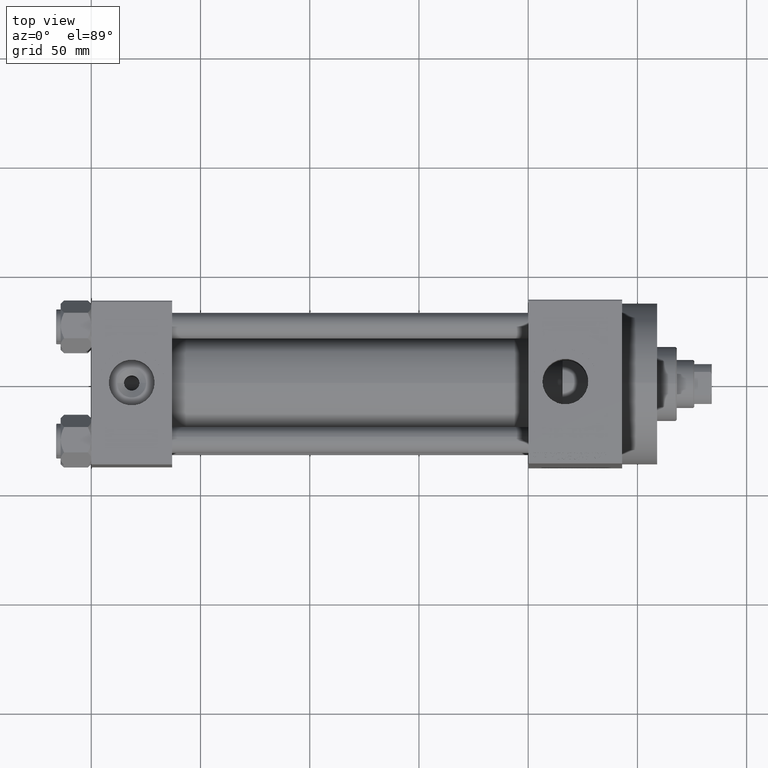
[diagram: clean part render]
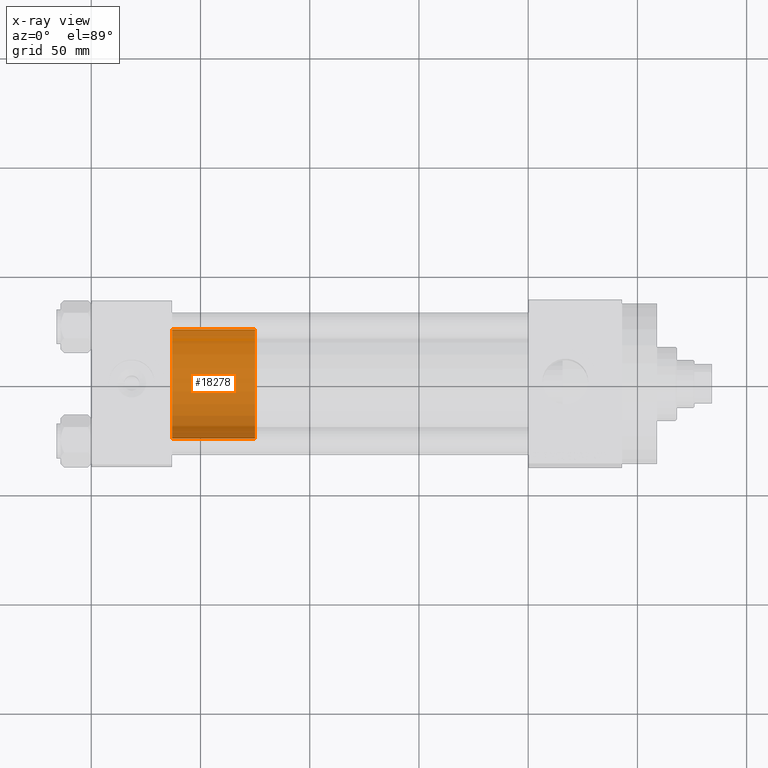
[diagram: x-ray — body ghosted, one internal face saturated and labeled with its STEP entity id]
A machine part, top view, then the same camera in x-ray: the body is ghosted and one INTERNAL B-rep face — a face not visible from any outside direction — is saturated and labeled: STEP entity #18278.
In plain terms, the highlighted cylindrical surface (partial cylindrical patch) has radius 25 mm, axis along (-1, 0, 0).
Its self-contained STEP definition (entity closure, byte-faithful):
#5282 = CYLINDRICAL_SURFACE ( 'NONE', #6899, 25.00000000000000000 ) ;
#5521 = CARTESIAN_POINT ( 'NONE',  ( 0.000000000000000000, 0.000000000000000000, 38.00000000000000000 ) ) ;
#5799 = ORIENTED_EDGE ( 'NONE', *, *, #43956, .F. ) ;
#6899 = AXIS2_PLACEMENT_3D ( 'NONE', #5521, #30124, #20092 ) ;
#6991 = VECTOR ( 'NONE', #15024, 1000.000000000000000 ) ;
#8460 = DIRECTION ( 'NONE',  ( 0.000000000000000000, 0.000000000000000000, 1.000000000000000000 ) ) ;
#9385 = EDGE_LOOP ( 'NONE', ( #5799, #38734, #14130, #19459 ) ) ;
#11811 = CARTESIAN_POINT ( 'NONE',  ( 0.000000000000000000, 0.000000000000000000, 0.000000000000000000 ) ) ;
#12518 = CARTESIAN_POINT ( 'NONE',  ( -25.00000000000000000, 0.000000000000000000, 38.00000000000000000 ) ) ;
#12570 = VERTEX_POINT ( 'NONE', #36905 ) ;
#14130 = ORIENTED_EDGE ( 'NONE', *, *, #43632, .T. ) ;
#14147 = VECTOR ( 'NONE', #44775, 1000.000000000000000 ) ;
#15024 = DIRECTION ( 'NONE',  ( -0.000000000000000000, -0.000000000000000000, -1.000000000000000000 ) ) ;
#15622 = CARTESIAN_POINT ( 'NONE',  ( -25.00000000000000000, 0.000000000000000000, 0.000000000000000000 ) ) ;
#16529 = CARTESIAN_POINT ( 'NONE',  ( 0.000000000000000000, 0.000000000000000000, 38.00000000000000000 ) ) ;
#18278 = ADVANCED_FACE ( 'NONE', ( #27011 ), #5282, .T. ) ;
#19456 = DIRECTION ( 'NONE',  ( 1.000000000000000000, 0.000000000000000000, 0.000000000000000000 ) ) ;
#19459 = ORIENTED_EDGE ( 'NONE', *, *, #37569, .F. ) ;
#20092 = DIRECTION ( 'NONE',  ( -1.000000000000000000, 0.000000000000000000, 0.000000000000000000 ) ) ;
#23518 = AXIS2_PLACEMENT_3D ( 'NONE', #11811, #8460, #19456 ) ;
#26238 = EDGE_CURVE ( 'NONE', #41365, #12570, #28867, .T. ) ;
#27011 = FACE_OUTER_BOUND ( 'NONE', #9385, .T. ) ;
#28867 = LINE ( 'NONE', #36036, #6991 ) ;
#30124 = DIRECTION ( 'NONE',  ( -0.000000000000000000, -0.000000000000000000, -1.000000000000000000 ) ) ;
#30194 = LINE ( 'NONE', #12518, #14147 ) ;
#30826 = CARTESIAN_POINT ( 'NONE',  ( -25.00000000000000000, 0.000000000000000000, 38.00000000000000000 ) ) ;
#34433 = DIRECTION ( 'NONE',  ( 1.000000000000000000, 0.000000000000000000, 0.000000000000000000 ) ) ;
#34661 = DIRECTION ( 'NONE',  ( 0.000000000000000000, 0.000000000000000000, 1.000000000000000000 ) ) ;
#35003 = AXIS2_PLACEMENT_3D ( 'NONE', #16529, #34661, #34433 ) ;
#36036 = CARTESIAN_POINT ( 'NONE',  ( 25.00000000000000000, 3.061616997868383043E-15, 38.00000000000000000 ) ) ;
#36905 = CARTESIAN_POINT ( 'NONE',  ( 25.00000000000000000, 3.061616997868383043E-15, 0.000000000000000000 ) ) ;
#37294 = CIRCLE ( 'NONE', #35003, 25.00000000000000000 ) ;
#37569 = EDGE_CURVE ( 'NONE', #41215, #43045, #30194, .T. ) ;
#38015 = CIRCLE ( 'NONE', #23518, 25.00000000000000000 ) ;
#38734 = ORIENTED_EDGE ( 'NONE', *, *, #26238, .T. ) ;
#41215 = VERTEX_POINT ( 'NONE', #30826 ) ;
#41365 = VERTEX_POINT ( 'NONE', #46327 ) ;
#43045 = VERTEX_POINT ( 'NONE', #15622 ) ;
#43632 = EDGE_CURVE ( 'NONE', #12570, #43045, #38015, .T. ) ;
#43956 = EDGE_CURVE ( 'NONE', #41365, #41215, #37294, .T. ) ;
#44775 = DIRECTION ( 'NONE',  ( -0.000000000000000000, -0.000000000000000000, -1.000000000000000000 ) ) ;
#46327 = CARTESIAN_POINT ( 'NONE',  ( 25.00000000000000000, 3.061616997868383043E-15, 38.00000000000000000 ) ) ;